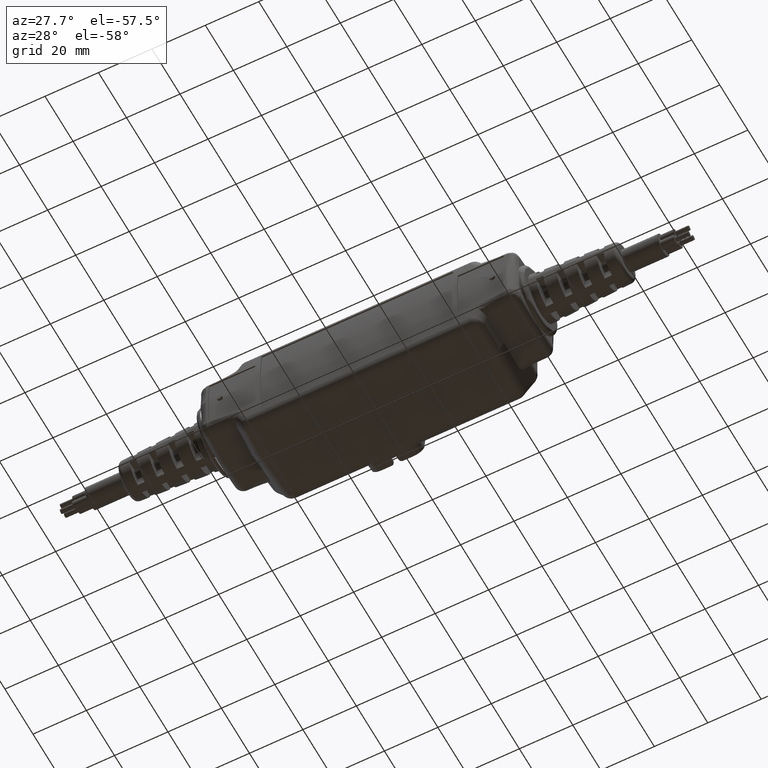
[diagram: clean part render]
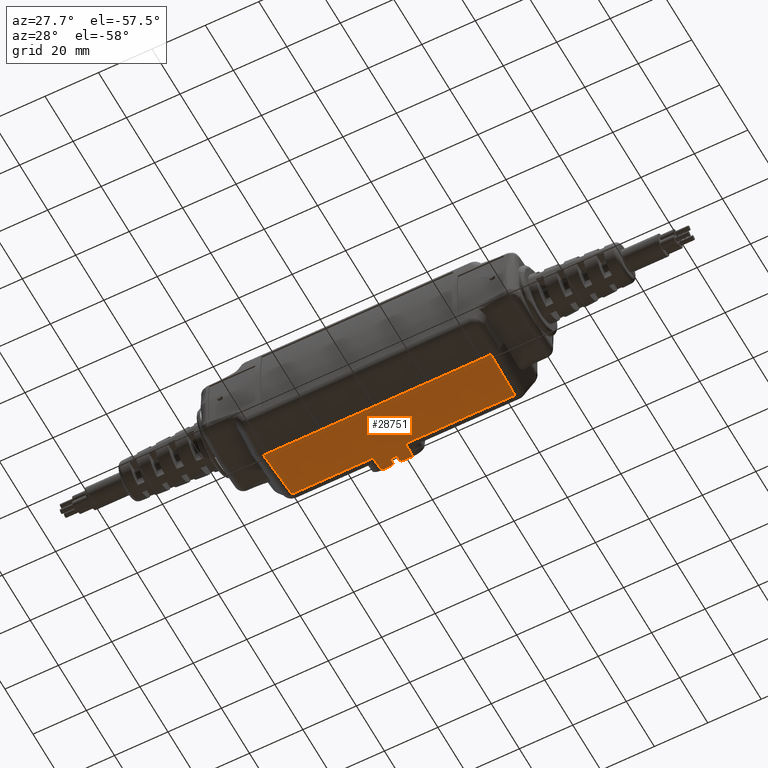
[diagram: same view with one face highlighted and labeled with its STEP entity id]
A machine part, auxiliary view. The second image highlights one B-rep face of the part: STEP entity #28751.
In plain terms, the highlighted planar face has unit normal (-0, 0.0785, -0.9969).
Its self-contained STEP definition (entity closure, byte-faithful):
#107 = DIRECTION ( 'NONE',  ( 1.000000000000000000, 6.668185433380451414E-18, 1.387778780781445367E-17 ) ) ;
#385 = EDGE_CURVE ( 'NONE', #5499, #27723, #1015, .T. ) ;
#495 = EDGE_CURVE ( 'NONE', #5955, #29112, #7176, .T. ) ;
#1015 = LINE ( 'NONE', #2832, #26196 ) ;
#1891 = EDGE_CURVE ( 'NONE', #9527, #10474, #28277, .T. ) ;
#2026 = CARTESIAN_POINT ( 'NONE',  ( -0.1434505844040385447, 0.9801476555081463093, -0.7286401792335374106 ) ) ;
#2446 = EDGE_CURVE ( 'NONE', #15220, #4637, #23135, .T. ) ;
#2832 = CARTESIAN_POINT ( 'NONE',  ( -1.981726499999999280, 0.02195188560991384943, -0.8040518217966574621 ) ) ;
#2960 = DIRECTION ( 'NONE',  ( 0.05217506182344409937, 0.9955594863438044229, 0.07835223082069806000 ) ) ;
#3471 = CARTESIAN_POINT ( 'NONE',  ( -0.2517755431485158568, 0.8855522301735003765, -0.7360850006651745714 ) ) ;
#3842 = CARTESIAN_POINT ( 'NONE',  ( -0.2889273355352459660, 0.9843519095244248618, -0.7283092972665319298 ) ) ;
#4273 = CARTESIAN_POINT ( 'NONE',  ( -0.1624976855131264053, 0.9462258817163704538, -0.7313098807294684534 ) ) ;
#4295 = CARTESIAN_POINT ( 'NONE',  ( -1.981726499999999058, 0.7572156358103705465, -0.7461853096896114979 ) ) ;
#4545 = CARTESIAN_POINT ( 'NONE',  ( -0.2514712690556276109, 0.8797463346165653730, -0.7365419345551507124 ) ) ;
#4637 = VERTEX_POINT ( 'NONE', #29039 ) ;
#4852 = ORIENTED_EDGE ( 'NONE', *, *, #26294, .T. ) ;
#5196 = CARTESIAN_POINT ( 'NONE',  ( -0.1622333274329766650, 0.9512701339429955327, -0.7309128894695795520 ) ) ;
#5312 = LINE ( 'NONE', #14556, #17908 ) ;
#5499 = VERTEX_POINT ( 'NONE', #10058 ) ;
#5778 = VECTOR ( 'NONE', #18209, 39.37007874015748854 ) ;
#5808 = CARTESIAN_POINT ( 'NONE',  ( -0.2549553144881059885, 0.9462258817399334943, -0.7313098807276141589 ) ) ;
#5825 = ORIENTED_EDGE ( 'NONE', *, *, #6325, .T. ) ;
#5872 = EDGE_CURVE ( 'NONE', #22501, #5955, #5312, .T. ) ;
#5955 = VERTEX_POINT ( 'NONE', #10479 ) ;
#5962 = CARTESIAN_POINT ( 'NONE',  ( -0.2939949264648862859, 0.9843519098012621926, -0.7283092972447440250 ) ) ;
#6039 = LINE ( 'NONE', #3471, #10539 ) ;
#6107 = CARTESIAN_POINT ( 'NONE',  ( -0.2839575809412561713, 0.9833390613836566763, -0.7283890101439639553 ) ) ;
#6206 = CARTESIAN_POINT ( 'NONE',  ( 0.02026475222628954312, 0.9889693310675693461, -0.7279458983099575953 ) ) ;
#6319 = LINE ( 'NONE', #22831, #12465 ) ;
#6325 = EDGE_CURVE ( 'NONE', #11885, #22501, #9929, .T. ) ;
#6481 = ORIENTED_EDGE ( 'NONE', *, *, #16021, .T. ) ;
#7041 = DIRECTION ( 'NONE',  ( 1.000000000000000000, 6.668185433380451414E-18, 1.387778780781445367E-17 ) ) ;
#7044 = B_SPLINE_CURVE_WITH_KNOTS ( 'NONE', 3,
 ( #25975, #5196, #24528, #14446, #15597, #2026, #27756, #11240 ),
 .UNSPECIFIED., .F., .F.,
 ( 4, 2, 2, 4 ),
 ( 0.000000000000000000, 0.0003806775389761764077, 0.0007613550779523528154, 0.001522710155904704980 ),
 .UNSPECIFIED. ) ;
#7176 = B_SPLINE_CURVE_WITH_KNOTS ( 'NONE', 3,
 ( #5962, #3842, #6107, #22166, #10842, #15649, #17962, #5808 ),
 .UNSPECIFIED., .F., .F.,
 ( 4, 2, 2, 4 ),
 ( 0.000000000000000000, 0.0003805842770875137414, 0.0007611685541750274828, 0.001522337108350054966 ),
 .UNSPECIFIED. ) ;
#7213 = LINE ( 'NONE', #23115, #17761 ) ;
#7554 = ORIENTED_EDGE ( 'NONE', *, *, #17004, .T. ) ;
#8005 = CARTESIAN_POINT ( 'NONE',  ( -1.981726499999999058, 0.7572156358103705465, -0.7461853096896114979 ) ) ;
#8216 = CARTESIAN_POINT ( 'NONE',  ( -0.1234580735351354791, 0.9843519098012621926, -0.7283092972447440250 ) ) ;
#9063 = VECTOR ( 'NONE', #2960, 39.37007874015748854 ) ;
#9167 = CARTESIAN_POINT ( 'NONE',  ( 1.644712927986472284, 0.7572156358103705465, -0.7461853096896114979 ) ) ;
#9178 = VERTEX_POINT ( 'NONE', #21986 ) ;
#9277 = VERTEX_POINT ( 'NONE', #4273 ) ;
#9527 = VERTEX_POINT ( 'NONE', #4545 ) ;
#9715 = CARTESIAN_POINT ( 'NONE',  ( -0.1659817309443691324, 0.8797463346165653730, -0.7365419345551507124 ) ) ;
#9929 = LINE ( 'NONE', #17035, #9063 ) ;
#10058 = CARTESIAN_POINT ( 'NONE',  ( 1.678122174328541050, 0.02195188560991387372, -0.8040518217966574621 ) ) ;
#10243 = DIRECTION ( 'NONE',  ( -1.000000000000000000, -6.668185433380451414E-18, -1.387778780781445367E-17 ) ) ;
#10321 = ORIENTED_EDGE ( 'NONE', *, *, #28418, .T. ) ;
#10474 = VERTEX_POINT ( 'NONE', #9715 ) ;
#10479 = CARTESIAN_POINT ( 'NONE',  ( -0.2939949264648862859, 0.9843519098012621926, -0.7283092972447440250 ) ) ;
#10539 = VECTOR ( 'NONE', #24212, 39.37007874015748854 ) ;
#10726 = ORIENTED_EDGE ( 'NONE', *, *, #1891, .T. ) ;
#10842 = CARTESIAN_POINT ( 'NONE',  ( -0.2704435540189758513, 0.9766102093514381632, -0.7289185822838699647 ) ) ;
#11240 = CARTESIAN_POINT ( 'NONE',  ( -0.1234580735351354791, 0.9843519098012621926, -0.7283092972447440250 ) ) ;
#11280 = DIRECTION ( 'NONE',  ( 0.04525197658736379580, -0.9958960962167422437, -0.07837872259223223337 ) ) ;
#11626 = DIRECTION ( 'NONE',  ( 1.000000000000000000, 6.668185433380451414E-18, 1.387778780781445367E-17 ) ) ;
#11737 = CARTESIAN_POINT ( 'NONE',  ( -1.981726499999999058, 0.8797463346165653730, -0.7365419345551507124 ) ) ;
#11885 = VERTEX_POINT ( 'NONE', #24749 ) ;
#12213 = VECTOR ( 'NONE', #107, 39.37007874015748143 ) ;
#12405 = LINE ( 'NONE', #8005, #29120 ) ;
#12465 = VECTOR ( 'NONE', #27277, 39.37007874015748143 ) ;
#12762 = EDGE_CURVE ( 'NONE', #29112, #9527, #6039, .T. ) ;
#13678 = ORIENTED_EDGE ( 'NONE', *, *, #12762, .T. ) ;
#13797 = CARTESIAN_POINT ( 'NONE',  ( -0.2549553144881059885, 0.9462258817399334943, -0.7313098807276141589 ) ) ;
#13834 = LINE ( 'NONE', #4295, #12213 ) ;
#14196 = CARTESIAN_POINT ( 'NONE',  ( -1.981726499999999058, 0.9843519098012621926, -0.7283092972447440250 ) ) ;
#14440 = CARTESIAN_POINT ( 'NONE',  ( 1.644712927986472284, 0.7572156358103705465, -0.7461853096896114979 ) ) ;
#14446 = CARTESIAN_POINT ( 'NONE',  ( -0.1569980741621672116, 0.9653610136192938285, -0.7298039131883939934 ) ) ;
#14556 = CARTESIAN_POINT ( 'NONE',  ( -1.981726499999999058, 0.9843519098012621926, -0.7283092972447440250 ) ) ;
#15057 = ORIENTED_EDGE ( 'NONE', *, *, #5872, .T. ) ;
#15220 = VERTEX_POINT ( 'NONE', #8216 ) ;
#15271 = EDGE_LOOP ( 'NONE', ( #13678, #10726, #17224, #19095, #25208, #10321, #7554, #22001, #29592, #4852, #6481, #5825, #15057, #20140 ) ) ;
#15597 = CARTESIAN_POINT ( 'NONE',  ( -0.1541382595532098387, 0.9695377536697586951, -0.7294751966174602975 ) ) ;
#15649 = CARTESIAN_POINT ( 'NONE',  ( -0.2597984577648052573, 0.9660559890894013790, -0.7297492174326952741 ) ) ;
#15793 = LINE ( 'NONE', #9167, #21131 ) ;
#16012 = CARTESIAN_POINT ( 'NONE',  ( -0.4379597410208686536, 0.9843519098012641910, -0.7283092972447440250 ) ) ;
#16021 = EDGE_CURVE ( 'NONE', #29479, #11885, #12405, .T. ) ;
#16151 = DIRECTION ( 'NONE',  ( 0.04525197658736463541, 0.9958960962167420217, 0.07837872259223221949 ) ) ;
#17004 = EDGE_CURVE ( 'NONE', #9178, #28070, #13834, .T. ) ;
#17035 = CARTESIAN_POINT ( 'NONE',  ( -0.4498634487353552758, 0.7572156358103705465, -0.7461853096896114979 ) ) ;
#17224 = ORIENTED_EDGE ( 'NONE', *, *, #23094, .T. ) ;
#17761 = VECTOR ( 'NONE', #16151, 39.37007874015748143 ) ;
#17908 = VECTOR ( 'NONE', #28089, 39.37007874015748143 ) ;
#17962 = CARTESIAN_POINT ( 'NONE',  ( -0.2554836439501512735, 0.9563070074412787225, -0.7305164789282048154 ) ) ;
#18209 = DIRECTION ( 'NONE',  ( 0.05217506182344446020, -0.9955594863438044229, -0.07835223082069806000 ) ) ;
#18320 = VECTOR ( 'NONE', #7041, 39.37007874015748143 ) ;
#19095 = ORIENTED_EDGE ( 'NONE', *, *, #20915, .T. ) ;
#20140 = ORIENTED_EDGE ( 'NONE', *, *, #495, .T. ) ;
#20567 = CARTESIAN_POINT ( 'NONE',  ( -1.676575174328538642, 0.02195188560991385290, -0.8040518217966574621 ) ) ;
#20915 = EDGE_CURVE ( 'NONE', #9277, #15220, #7044, .T. ) ;
#21131 = VECTOR ( 'NONE', #11280, 39.37007874015747433 ) ;
#21986 = CARTESIAN_POINT ( 'NONE',  ( 0.03241044873535802590, 0.7572156358103705465, -0.7461853096896116089 ) ) ;
#22001 = ORIENTED_EDGE ( 'NONE', *, *, #25368, .T. ) ;
#22166 = CARTESIAN_POINT ( 'NONE',  ( -0.2746854993402887413, 0.9794656409488676774, -0.7286938549434313073 ) ) ;
#22501 = VERTEX_POINT ( 'NONE', #16012 ) ;
#22831 = CARTESIAN_POINT ( 'NONE',  ( -0.1625802179083892518, 0.9446510698011874041, -0.7314338211151211189 ) ) ;
#23057 = DIRECTION ( 'NONE',  ( -4.237443119463392766E-16, -0.9969173337331279638, -0.07845909572784511010 ) ) ;
#23094 = EDGE_CURVE ( 'NONE', #10474, #9277, #6319, .T. ) ;
#23115 = CARTESIAN_POINT ( 'NONE',  ( -1.676575174328538642, 0.02195188560991385290, -0.8040518217966574621 ) ) ;
#23135 = LINE ( 'NONE', #14196, #29445 ) ;
#23246 = AXIS2_PLACEMENT_3D ( 'NONE', #27346, #29622, #23057 ) ;
#24212 = DIRECTION ( 'NONE',  ( 0.05217506182344371773, -0.9955594863438044229, -0.07835223082069806000 ) ) ;
#24353 = DIRECTION ( 'NONE',  ( 1.000000000000000000, 6.668185433380451414E-18, 1.387778780781445367E-17 ) ) ;
#24528 = CARTESIAN_POINT ( 'NONE',  ( -0.1610694121120487821, 0.9561561418888261388, -0.7305283523046831595 ) ) ;
#24570 = PLANE ( 'NONE',  #23246 ) ;
#24749 = CARTESIAN_POINT ( 'NONE',  ( -0.4498634487353552758, 0.7572156358103705465, -0.7461853096896114979 ) ) ;
#25208 = ORIENTED_EDGE ( 'NONE', *, *, #2446, .T. ) ;
#25368 = EDGE_CURVE ( 'NONE', #28070, #5499, #15793, .T. ) ;
#25862 = CARTESIAN_POINT ( 'NONE',  ( -1.643165927986469432, 0.7572156358103705465, -0.7461853096896116089 ) ) ;
#25975 = CARTESIAN_POINT ( 'NONE',  ( -0.1624976855131264053, 0.9462258817163704538, -0.7313098807294684534 ) ) ;
#26196 = VECTOR ( 'NONE', #10243, 39.37007874015748143 ) ;
#26294 = EDGE_CURVE ( 'NONE', #27723, #29479, #7213, .T. ) ;
#26883 = FACE_OUTER_BOUND ( 'NONE', #15271, .T. ) ;
#27277 = DIRECTION ( 'NONE',  ( 0.05217506182344455734, 0.9955594863438044229, 0.07835223082069806000 ) ) ;
#27313 = LINE ( 'NONE', #6206, #5778 ) ;
#27346 = CARTESIAN_POINT ( 'NONE',  ( -1.981726499999999280, 0.02195188560991385290, -0.8040518217966574621 ) ) ;
#27723 = VERTEX_POINT ( 'NONE', #20567 ) ;
#27756 = CARTESIAN_POINT ( 'NONE',  ( -0.1336016339637346173, 0.9843519095207045044, -0.7283092972668243625 ) ) ;
#28070 = VERTEX_POINT ( 'NONE', #14440 ) ;
#28089 = DIRECTION ( 'NONE',  ( 1.000000000000000000, 6.668185433380451414E-18, 1.387778780781445367E-17 ) ) ;
#28277 = LINE ( 'NONE', #11737, #18320 ) ;
#28418 = EDGE_CURVE ( 'NONE', #4637, #9178, #27313, .T. ) ;
#28751 = ADVANCED_FACE ( 'NONE', ( #26883 ), #24570, .T. ) ;
#29039 = CARTESIAN_POINT ( 'NONE',  ( 0.02050674102087095621, 0.9843519098012621926, -0.7283092972447440250 ) ) ;
#29112 = VERTEX_POINT ( 'NONE', #13797 ) ;
#29120 = VECTOR ( 'NONE', #24353, 39.37007874015748143 ) ;
#29445 = VECTOR ( 'NONE', #11626, 39.37007874015748143 ) ;
#29479 = VERTEX_POINT ( 'NONE', #25862 ) ;
#29592 = ORIENTED_EDGE ( 'NONE', *, *, #385, .T. ) ;
#29622 = DIRECTION ( 'NONE',  ( -8.412701439255728864E-18, 0.07845909572784511010, -0.9969173337331279638 ) ) ;